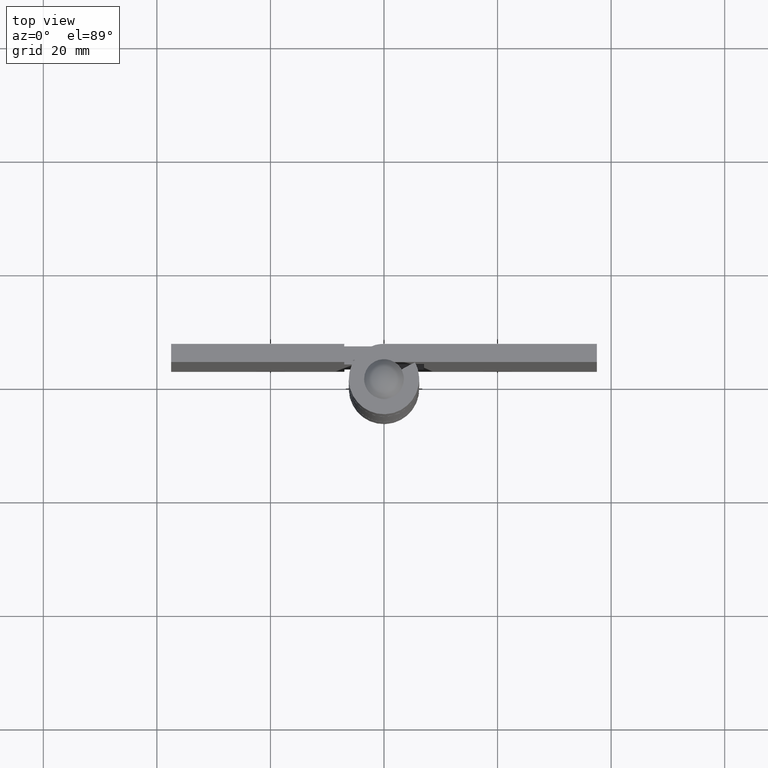
[diagram: clean part render]
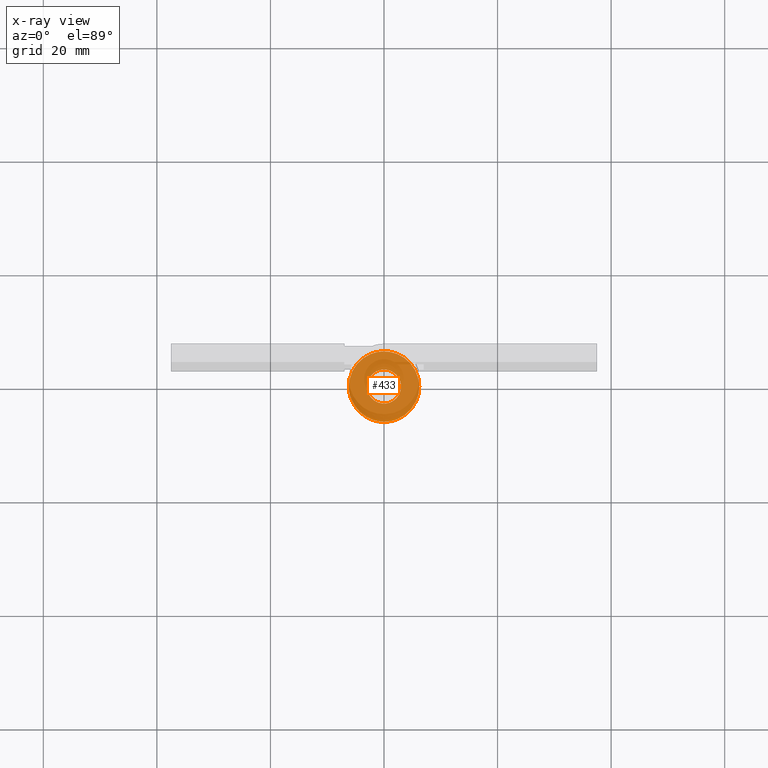
[diagram: x-ray — body ghosted, one internal face saturated and labeled with its STEP entity id]
A machine part, top view, then the same camera in x-ray: the body is ghosted and one INTERNAL B-rep face — a face not visible from any outside direction — is saturated and labeled: STEP entity #433.
In plain terms, the highlighted face is a freeform B-spline surface patch.
Its self-contained STEP definition (entity closure, byte-faithful):
#66=CARTESIAN_POINT('',(0.731812255042838,-6.156659063434413,23.0));
#67=VERTEX_POINT('',#66);
#68=CARTESIAN_POINT('',(-6.200000000000000,0.0,23.0));
#69=VERTEX_POINT('',#68);
#70=CARTESIAN_POINT('',(0.731812255042838,-6.156659063434413,23.000000000000004));
#71=CARTESIAN_POINT('',(0.367189542014585,-6.200000000000000,23.000000000000004));
#72=CARTESIAN_POINT('',(0.0,-6.200000000000000,23.0));
#73=CARTESIAN_POINT('',(-6.199999999999999,-6.199999999999999,22.999999999999996));
#74=CARTESIAN_POINT('',(-6.200000000000000,0.0,23.0));
#82=(BOUNDED_CURVE()B_SPLINE_CURVE(2,(#70,#71,#72,#73,#74),.UNSPECIFIED.,.F.,.U.)B_SPLINE_CURVE_WITH_KNOTS((3,2,3),(0.229562473506260,0.250000000000000,0.500000000000000),.UNSPECIFIED.)CURVE()GEOMETRIC_REPRESENTATION_ITEM()RATIONAL_B_SPLINE_CURVE((0.956026754169492,0.976055948322653,1.0,0.707106781186547,1.0))REPRESENTATION_ITEM(''));
#83=EDGE_CURVE('',#67,#69,#82,.T.);
#124=CARTESIAN_POINT('',(-0.378497428869986,6.188435965276396,22.999999999999890));
#125=VERTEX_POINT('',#124);
#131=CARTESIAN_POINT('',(-6.200000000000000,0.0,23.0));
#132=CARTESIAN_POINT('',(-6.200000000000000,5.832380934944007,23.000000000000004));
#133=CARTESIAN_POINT('',(-0.378497428869986,6.188435965276396,22.999999999999883));
#141=(BOUNDED_CURVE()B_SPLINE_CURVE(2,(#131,#132,#133),.UNSPECIFIED.,.F.,.U.)B_SPLINE_CURVE_WITH_KNOTS((3,3),(0.500000000000000,0.739333060282418),.UNSPECIFIED.)CURVE()GEOMETRIC_REPRESENTATION_ITEM()RATIONAL_B_SPLINE_CURVE((1.0,0.719603878421634,0.976072251792639))REPRESENTATION_ITEM(''));
#142=EDGE_CURVE('',#69,#125,#141,.T.);
#165=CARTESIAN_POINT('',(6.200000000000000,0.0,23.0));
#166=VERTEX_POINT('',#165);
#167=CARTESIAN_POINT('',(6.200000000000000,0.0,23.0));
#168=CARTESIAN_POINT('',(6.199999999999999,-5.506682060590544,22.999999999999996));
#169=CARTESIAN_POINT('',(0.731812255042838,-6.156659063434413,23.000000000000004));
#177=(BOUNDED_CURVE()B_SPLINE_CURVE(2,(#167,#168,#169),.UNSPECIFIED.,.F.,.U.)B_SPLINE_CURVE_WITH_KNOTS((3,3),(0.0,0.229562473506260),.UNSPECIFIED.)CURVE()GEOMETRIC_REPRESENTATION_ITEM()RATIONAL_B_SPLINE_CURVE((1.0,0.731050832863895,0.956026754169492))REPRESENTATION_ITEM(''));
#178=EDGE_CURVE('',#166,#67,#177,.T.);
#180=CARTESIAN_POINT('',(-0.378497428869986,6.188435965276396,22.999999999999883));
#181=CARTESIAN_POINT('',(-0.189425369398659,6.200000000000000,23.000000000000007));
#182=CARTESIAN_POINT('',(0.0,6.200000000000000,23.0));
#183=CARTESIAN_POINT('',(6.199999999999999,6.199999999999999,22.999999999999996));
#184=CARTESIAN_POINT('',(6.200000000000000,0.0,23.0));
#192=(BOUNDED_CURVE()B_SPLINE_CURVE(2,(#180,#181,#182,#183,#184),.UNSPECIFIED.,.F.,.U.)B_SPLINE_CURVE_WITH_KNOTS((3,2,3),(0.739333060282418,0.750000000000000,1.0),.UNSPECIFIED.)CURVE()GEOMETRIC_REPRESENTATION_ITEM()RATIONAL_B_SPLINE_CURVE((0.976072251792639,0.987502902764914,1.0,0.707106781186547,1.0))REPRESENTATION_ITEM(''));
#193=EDGE_CURVE('',#125,#166,#192,.T.);
#252=CARTESIAN_POINT('',(0.354102704190013,-2.979028579064880,23.0));
#253=VERTEX_POINT('',#252);
#254=CARTESIAN_POINT('',(-3.0,0.0,23.0));
#255=VERTEX_POINT('',#254);
#256=CARTESIAN_POINT('',(0.354102704190013,-2.979028579064881,22.999999999999996));
#257=CARTESIAN_POINT('',(0.177672359177791,-3.000000000000000,22.999999999999996));
#258=CARTESIAN_POINT('',(0.0,-3.0,23.0));
#259=CARTESIAN_POINT('',(-3.0,-3.0,22.999999999999993));
#260=CARTESIAN_POINT('',(-3.0,0.0,23.0));
#268=(BOUNDED_CURVE()B_SPLINE_CURVE(2,(#256,#257,#258,#259,#260),.UNSPECIFIED.,.F.,.U.)B_SPLINE_CURVE_WITH_KNOTS((3,2,3),(0.229562473490712,0.250000000000000,0.500000000000000),.UNSPECIFIED.)CURVE()GEOMETRIC_REPRESENTATION_ITEM()RATIONAL_B_SPLINE_CURVE((0.956026754139018,0.976055948304438,1.0,0.707106781186548,1.0))REPRESENTATION_ITEM(''));
#269=EDGE_CURVE('',#253,#255,#268,.T.);
#271=CARTESIAN_POINT('',(-0.183145618906680,2.994404395247122,23.0));
#272=VERTEX_POINT('',#271);
#273=CARTESIAN_POINT('',(-3.0,0.0,23.0));
#274=CARTESIAN_POINT('',(-3.000000000000000,2.822118200146552,23.000000000000004));
#275=CARTESIAN_POINT('',(-0.183145618906680,2.994404395247122,23.000000000000004));
#283=(BOUNDED_CURVE()B_SPLINE_CURVE(2,(#273,#274,#275),.UNSPECIFIED.,.F.,.U.)B_SPLINE_CURVE_WITH_KNOTS((3,3),(0.500000000000000,0.739332962207151),.UNSPECIFIED.)CURVE()GEOMETRIC_REPRESENTATION_ITEM()RATIONAL_B_SPLINE_CURVE((1.0,0.719603993323957,0.976072041598581))REPRESENTATION_ITEM(''));
#284=EDGE_CURVE('',#255,#272,#283,.T.);
#351=CARTESIAN_POINT('',(3.0,0.0,23.0));
#352=VERTEX_POINT('',#351);
#353=CARTESIAN_POINT('',(3.0,0.0,23.0));
#354=CARTESIAN_POINT('',(3.000000000000001,-2.664523577458259,23.000000000000004));
#355=CARTESIAN_POINT('',(0.354102704190013,-2.979028579064881,22.999999999999996));
#363=(BOUNDED_CURVE()B_SPLINE_CURVE(2,(#353,#354,#355),.UNSPECIFIED.,.F.,.U.)B_SPLINE_CURVE_WITH_KNOTS((3,3),(0.0,0.229562473490712),.UNSPECIFIED.)CURVE()GEOMETRIC_REPRESENTATION_ITEM()RATIONAL_B_SPLINE_CURVE((1.0,0.731050832882109,0.956026754139018))REPRESENTATION_ITEM(''));
#364=EDGE_CURVE('',#352,#253,#363,.T.);
#398=CARTESIAN_POINT('',(-0.183145618906680,2.994404395247122,23.000000000000004));
#399=CARTESIAN_POINT('',(-0.091658290198723,3.0,23.0));
#400=CARTESIAN_POINT('',(0.0,3.0,23.0));
#401=CARTESIAN_POINT('',(3.0,3.0,22.999999999999993));
#402=CARTESIAN_POINT('',(3.0,0.0,23.0));
#410=(BOUNDED_CURVE()B_SPLINE_CURVE(2,(#398,#399,#400,#401,#402),.UNSPECIFIED.,.F.,.U.)B_SPLINE_CURVE_WITH_KNOTS((3,2,3),(0.739332962207151,0.750000000000000,1.0),.UNSPECIFIED.)CURVE()GEOMETRIC_REPRESENTATION_ITEM()RATIONAL_B_SPLINE_CURVE((0.976072041598582,0.987502787862591,1.0,0.707106781186548,1.0))REPRESENTATION_ITEM(''));
#411=EDGE_CURVE('',#272,#352,#410,.T.);
#416=CARTESIAN_POINT('',(-6.819379815262556,-6.819267210913087,23.0));
#417=CARTESIAN_POINT('',(6.819379371803998,-6.819267210913087,23.0));
#418=CARTESIAN_POINT('',(-6.819379815262556,6.819229073477173,23.0));
#419=CARTESIAN_POINT('',(6.819379371803998,6.819229073477173,23.0));
#420=B_SPLINE_SURFACE_WITH_KNOTS('',1,1,((#416,#418),(#417,#419)),.UNSPECIFIED.,.F.,.F.,.U.,(2,2),(2,2),(0.0,13.638759187066560),(0.0,13.638496284390261),.UNSPECIFIED.);
#421=ORIENTED_EDGE('',*,*,#178,.T.);
#422=ORIENTED_EDGE('',*,*,#83,.T.);
#423=ORIENTED_EDGE('',*,*,#142,.T.);
#424=ORIENTED_EDGE('',*,*,#193,.T.);
#425=EDGE_LOOP('',(#421,#422,#423,#424));
#426=FACE_OUTER_BOUND('',#425,.T.);
#427=ORIENTED_EDGE('',*,*,#284,.F.);
#428=ORIENTED_EDGE('',*,*,#269,.F.);
#429=ORIENTED_EDGE('',*,*,#364,.F.);
#430=ORIENTED_EDGE('',*,*,#411,.F.);
#431=EDGE_LOOP('',(#427,#428,#429,#430));
#432=FACE_BOUND('',#431,.T.);
#433=ADVANCED_FACE('',(#426,#432),#420,.F.);